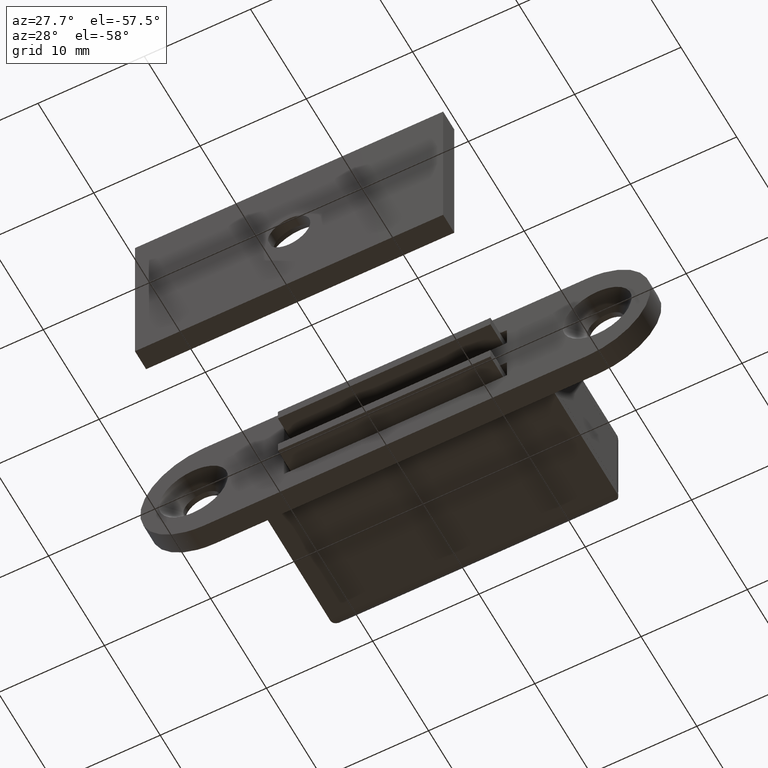
[diagram: clean part render]
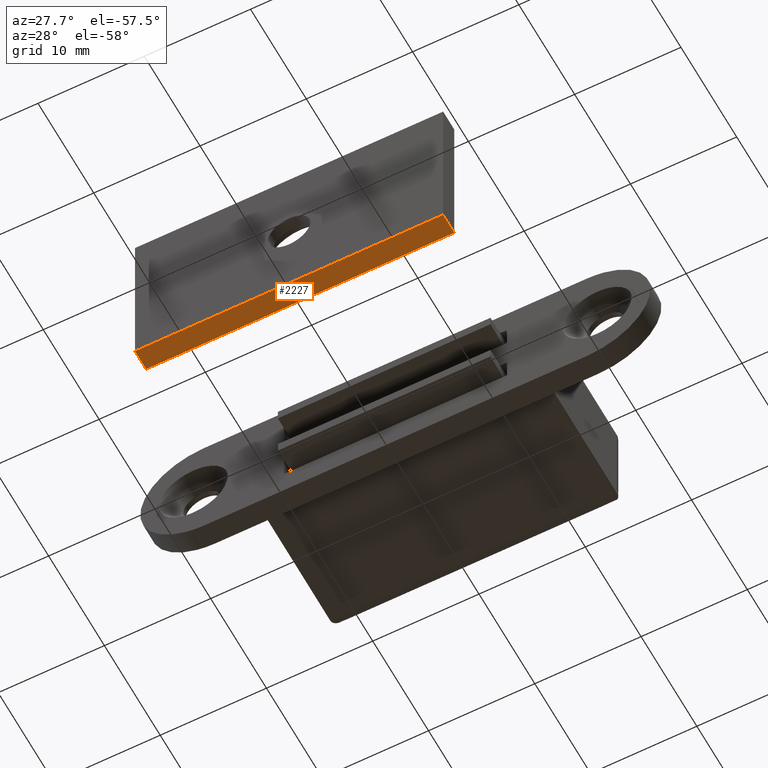
[diagram: same view with one face highlighted and labeled with its STEP entity id]
A machine part, auxiliary view. The second image highlights one B-rep face of the part: STEP entity #2227.
In plain terms, the highlighted face is a freeform B-spline surface patch.
Its self-contained STEP definition (entity closure, byte-faithful):
#2129=CARTESIAN_POINT('',(-14.500000000000000,-34.044645065486648,-8.0));
#2130=VERTEX_POINT('',#2129);
#2138=CARTESIAN_POINT('',(14.500000000000000,-34.044645065486648,-8.0));
#2139=VERTEX_POINT('',#2138);
#2140=CARTESIAN_POINT('',(14.500000000000000,-34.044645065486648,-8.0));
#2141=CARTESIAN_POINT('',(-14.500000000000000,-34.044645065486648,-8.0));
#2142=QUASI_UNIFORM_CURVE('',1,(#2140,#2141),.UNSPECIFIED.,.F.,.U.);
#2143=EDGE_CURVE('',#2139,#2130,#2142,.T.);
#2171=CARTESIAN_POINT('',(-14.500000000000000,-32.044645065486648,-8.0));
#2172=VERTEX_POINT('',#2171);
#2187=CARTESIAN_POINT('',(14.500000000000000,-32.044645065486648,-8.0));
#2188=VERTEX_POINT('',#2187);
#2194=CARTESIAN_POINT('',(14.500000000000000,-32.044645065486648,-8.0));
#2195=CARTESIAN_POINT('',(-14.500000000000000,-32.044645065486648,-8.0));
#2196=QUASI_UNIFORM_CURVE('',1,(#2194,#2195),.UNSPECIFIED.,.F.,.U.);
#2197=EDGE_CURVE('',#2188,#2172,#2196,.T.);
#2208=CARTESIAN_POINT('',(-15.948549943792379,-34.144545061610259,-8.0));
#2209=CARTESIAN_POINT('',(15.948550721632991,-34.144545061610259,-8.0));
#2210=CARTESIAN_POINT('',(-15.948549943792379,-31.944745015718858,-8.0));
#2211=CARTESIAN_POINT('',(15.948550721632991,-31.944745015718858,-8.0));
#2212=B_SPLINE_SURFACE_WITH_KNOTS('',1,1,((#2208,#2210),(#2209,#2211)),.UNSPECIFIED.,.F.,.F.,.U.,(2,2),(2,2),(0.0,31.897100665425370),(0.0,2.199800045891404),.UNSPECIFIED.);
#2213=ORIENTED_EDGE('',*,*,#2143,.T.);
#2214=CARTESIAN_POINT('',(-14.500000000000000,-32.044645065486648,-8.0));
#2215=CARTESIAN_POINT('',(-14.500000000000000,-34.044645065486648,-8.0));
#2216=QUASI_UNIFORM_CURVE('',1,(#2214,#2215),.UNSPECIFIED.,.F.,.U.);
#2217=EDGE_CURVE('',#2172,#2130,#2216,.T.);
#2218=ORIENTED_EDGE('',*,*,#2217,.F.);
#2219=ORIENTED_EDGE('',*,*,#2197,.F.);
#2220=CARTESIAN_POINT('',(14.500000000000000,-32.044645065486648,-8.0));
#2221=CARTESIAN_POINT('',(14.500000000000000,-34.044645065486648,-8.0));
#2222=QUASI_UNIFORM_CURVE('',1,(#2220,#2221),.UNSPECIFIED.,.F.,.U.);
#2223=EDGE_CURVE('',#2188,#2139,#2222,.T.);
#2224=ORIENTED_EDGE('',*,*,#2223,.T.);
#2225=EDGE_LOOP('',(#2213,#2218,#2219,#2224));
#2226=FACE_OUTER_BOUND('',#2225,.T.);
#2227=ADVANCED_FACE('',(#2226),#2212,.F.);